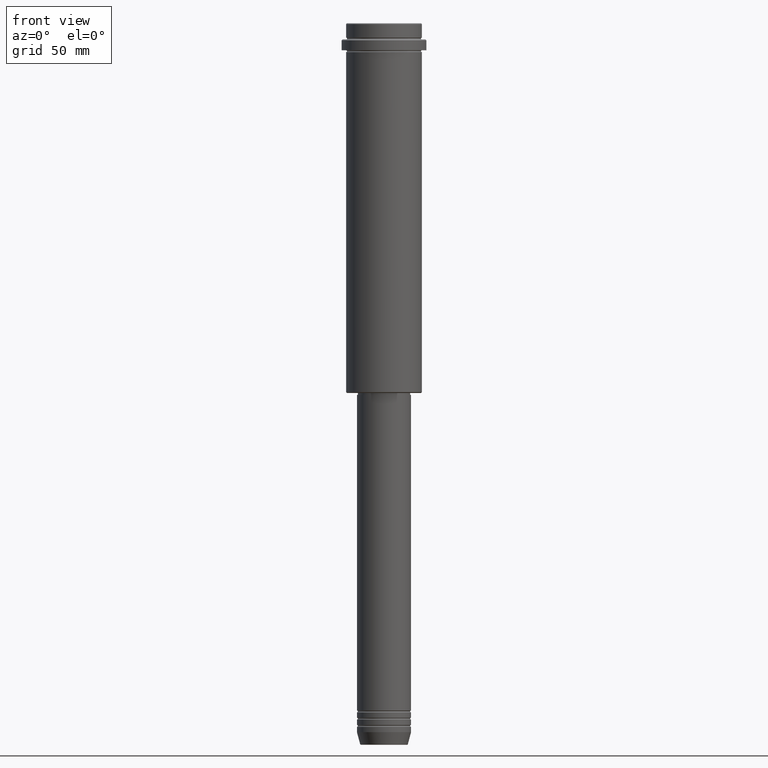
[diagram: clean part render]
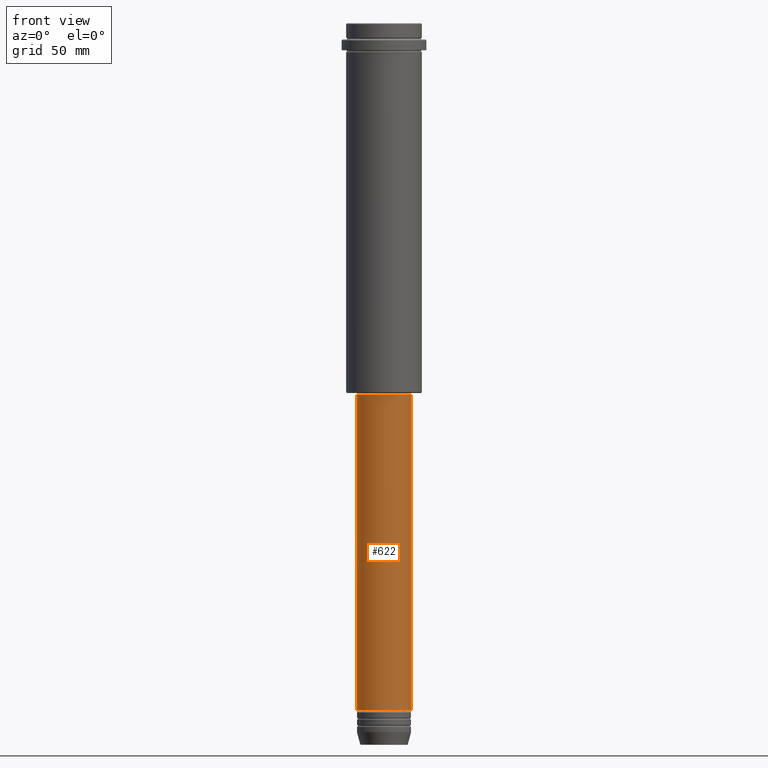
[diagram: same view with one face highlighted and labeled with its STEP entity id]
A machine part, front view. The second image highlights one B-rep face of the part: STEP entity #622.
In plain terms, the highlighted cylindrical surface (edge-blend (fillet) strip) has radius 15 mm, axis along (-0, -0, 1).
Its self-contained STEP definition (entity closure, byte-faithful):
#10 = DIRECTION ( 'NONE',  ( -0.000000000000000000, -0.000000000000000000, 1.000000000000000000 ) ) ;
#64 = CIRCLE ( 'NONE', #1193, 15.00000000000000000 ) ;
#105 = CARTESIAN_POINT ( 'NONE',  ( -15.00000000000000000, 1.836970198721029589E-15, -205.9999999999999432 ) ) ;
#317 = VERTEX_POINT ( 'NONE', #105 ) ;
#380 = CARTESIAN_POINT ( 'NONE',  ( 0.000000000000000000, 0.000000000000000000, -205.9999999999999432 ) ) ;
#409 = ORIENTED_EDGE ( 'NONE', *, *, #682, .T. ) ;
#441 = FACE_OUTER_BOUND ( 'NONE', #1055, .T. ) ;
#533 = CARTESIAN_POINT ( 'NONE',  ( -15.00000000000000000, 1.836970198721029589E-15, 0.000000000000000000 ) ) ;
#539 = LINE ( 'NONE', #533, #550 ) ;
#550 = VECTOR ( 'NONE', #960, 1000.000000000000000 ) ;
#560 = CARTESIAN_POINT ( 'NONE',  ( 15.00000000000000000, 0.000000000000000000, 0.000000000000000000 ) ) ;
#607 = VECTOR ( 'NONE', #10, 1000.000000000000000 ) ;
#622 = ADVANCED_FACE ( 'NONE', ( #441 ), #1310, .T. ) ;
#682 = EDGE_CURVE ( 'NONE', #886, #1013, #1096, .T. ) ;
#697 = CARTESIAN_POINT ( 'NONE',  ( 15.00000000000000000, 0.000000000000000000, -205.9999999999999432 ) ) ;
#710 = VERTEX_POINT ( 'NONE', #1067 ) ;
#814 = CIRCLE ( 'NONE', #1344, 15.00000000000000000 ) ;
#886 = VERTEX_POINT ( 'NONE', #1281 ) ;
#890 = ORIENTED_EDGE ( 'NONE', *, *, #1035, .F. ) ;
#941 = EDGE_CURVE ( 'NONE', #710, #317, #539, .T. ) ;
#947 = EDGE_CURVE ( 'NONE', #710, #886, #64, .T. ) ;
#960 = DIRECTION ( 'NONE',  ( -0.000000000000000000, -0.000000000000000000, 1.000000000000000000 ) ) ;
#975 = AXIS2_PLACEMENT_3D ( 'NONE', #1399, #976, #1217 ) ;
#976 = DIRECTION ( 'NONE',  ( -0.000000000000000000, -0.000000000000000000, 1.000000000000000000 ) ) ;
#1013 = VERTEX_POINT ( 'NONE', #697 ) ;
#1030 = DIRECTION ( 'NONE',  ( 1.000000000000000000, 0.000000000000000000, 0.000000000000000000 ) ) ;
#1035 = EDGE_CURVE ( 'NONE', #317, #1013, #814, .T. ) ;
#1055 = EDGE_LOOP ( 'NONE', ( #1120, #1182, #409, #890 ) ) ;
#1067 = CARTESIAN_POINT ( 'NONE',  ( -15.00000000000000000, 1.836970198721029589E-15, -380.9999999999998863 ) ) ;
#1096 = LINE ( 'NONE', #560, #607 ) ;
#1120 = ORIENTED_EDGE ( 'NONE', *, *, #941, .F. ) ;
#1138 = DIRECTION ( 'NONE',  ( -0.000000000000000000, -0.000000000000000000, 1.000000000000000000 ) ) ;
#1182 = ORIENTED_EDGE ( 'NONE', *, *, #947, .T. ) ;
#1193 = AXIS2_PLACEMENT_3D ( 'NONE', #1244, #1138, #1030 ) ;
#1217 = DIRECTION ( 'NONE',  ( 1.000000000000000000, 0.000000000000000000, 0.000000000000000000 ) ) ;
#1244 = CARTESIAN_POINT ( 'NONE',  ( 0.000000000000000000, 0.000000000000000000, -380.9999999999998863 ) ) ;
#1249 = DIRECTION ( 'NONE',  ( -0.000000000000000000, -0.000000000000000000, 1.000000000000000000 ) ) ;
#1281 = CARTESIAN_POINT ( 'NONE',  ( 15.00000000000000000, 0.000000000000000000, -380.9999999999998863 ) ) ;
#1310 = CYLINDRICAL_SURFACE ( 'NONE', #975, 15.00000000000000000 ) ;
#1344 = AXIS2_PLACEMENT_3D ( 'NONE', #380, #1249, #1356 ) ;
#1356 = DIRECTION ( 'NONE',  ( 1.000000000000000000, 0.000000000000000000, 0.000000000000000000 ) ) ;
#1399 = CARTESIAN_POINT ( 'NONE',  ( 0.000000000000000000, 0.000000000000000000, 0.000000000000000000 ) ) ;